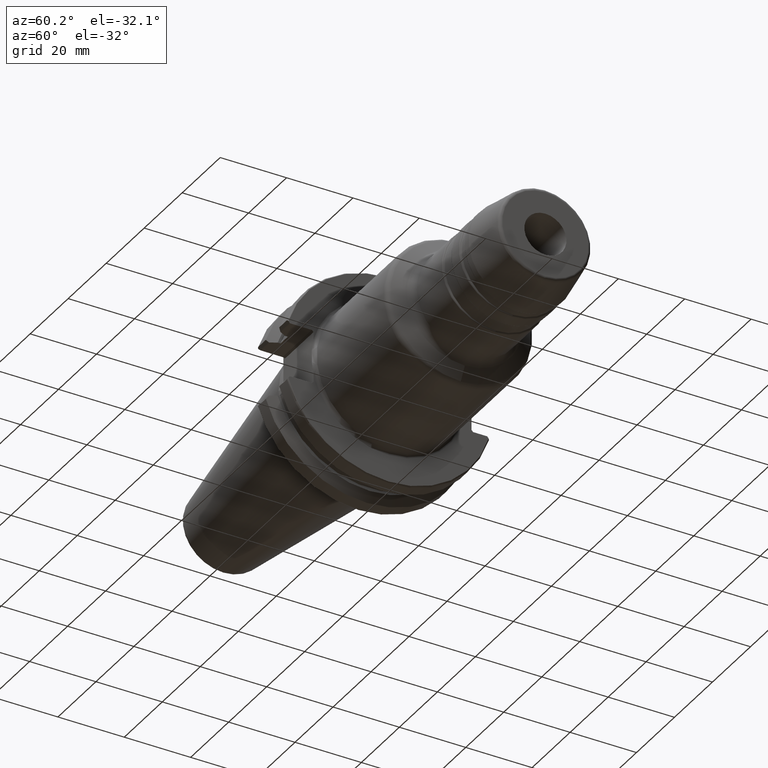
[diagram: clean part render]
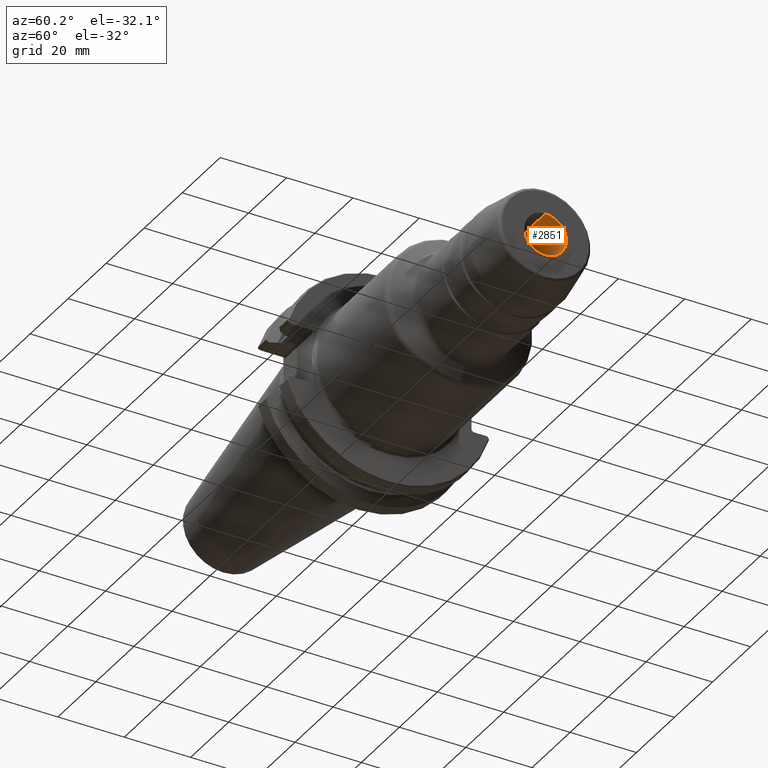
[diagram: same view with one face highlighted and labeled with its STEP entity id]
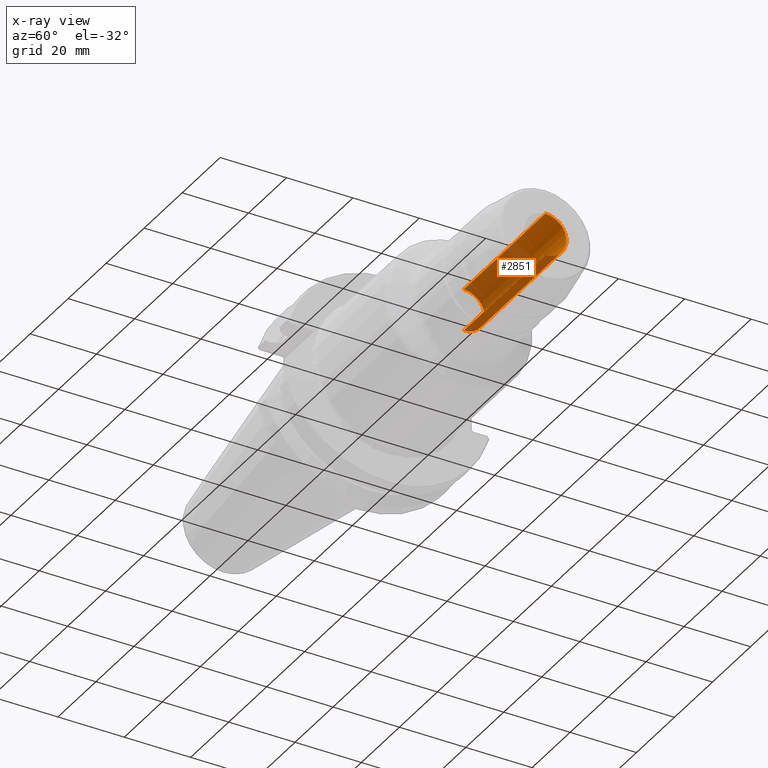
[diagram: x-ray of the same camera — body ghosted, the highlighted face saturated]
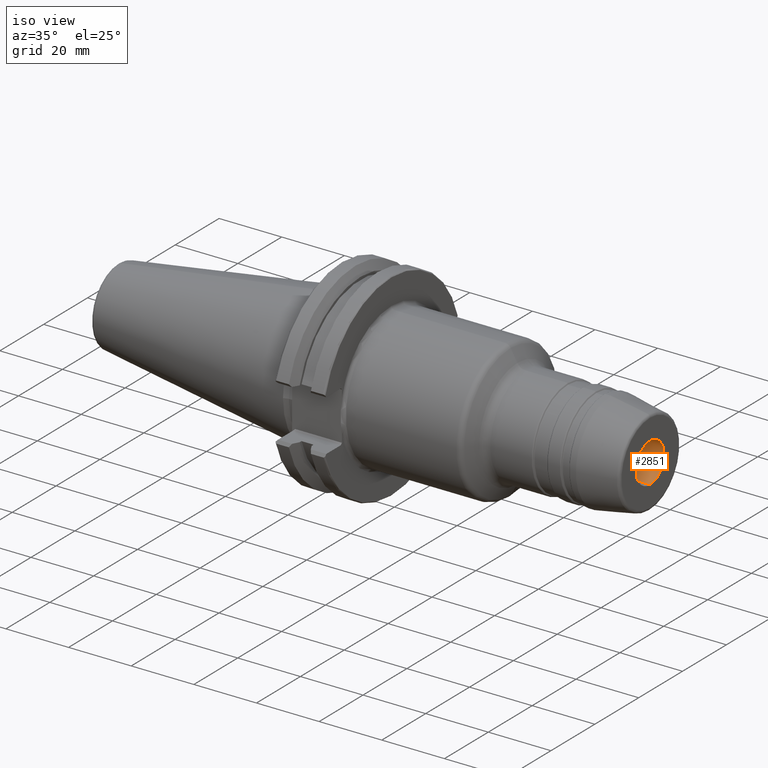
[diagram: same view with one face highlighted and labeled with its STEP entity id]
A machine part, auxiliary view. The second image highlights one B-rep face of the part: STEP entity #2851.
The next image is the same camera in x-ray: the body ghosted, the highlighted face saturated — about 45% of this face is hidden behind the body in this view.
A second angle (iso view) of the same face is appended — the face is thin or edge-on in the first view.
In plain terms, the highlighted cylindrical surface (edge-blend (fillet) strip) has radius 6.35 mm, axis along (1, 0, 0).
Its self-contained STEP definition (entity closure, byte-faithful):
#673=CARTESIAN_POINT('',(1.01625E2,0.E0,0.E0));
#674=DIRECTION('',(1.E0,0.E0,0.E0));
#675=DIRECTION('',(0.E0,0.E0,-1.E0));
#676=AXIS2_PLACEMENT_3D('',#673,#674,#675);
#683=CARTESIAN_POINT('',(5.8625E1,0.E0,0.E0));
#684=DIRECTION('',(1.E0,0.E0,0.E0));
#685=DIRECTION('',(0.E0,0.E0,-1.E0));
#686=AXIS2_PLACEMENT_3D('',#683,#684,#685);
#688=DIRECTION('',(1.E0,0.E0,0.E0));
#689=VECTOR('',#688,4.3E1);
#690=CARTESIAN_POINT('',(5.8625E1,0.E0,-6.35E0));
#691=LINE('',#690,#689);
#692=DIRECTION('',(1.E0,0.E0,0.E0));
#693=VECTOR('',#692,4.3E1);
#694=CARTESIAN_POINT('',(5.8625E1,0.E0,6.35E0));
#695=LINE('',#694,#693);
#1684=CARTESIAN_POINT('',(5.8625E1,0.E0,-6.35E0));
#1685=CARTESIAN_POINT('',(1.01625E2,0.E0,-6.35E0));
#1686=VERTEX_POINT('',#1684);
#1687=VERTEX_POINT('',#1685);
#1740=CARTESIAN_POINT('',(5.8625E1,0.E0,6.35E0));
#1741=CARTESIAN_POINT('',(1.01625E2,0.E0,6.35E0));
#1742=VERTEX_POINT('',#1740);
#1743=VERTEX_POINT('',#1741);
#2837=CARTESIAN_POINT('',(1.49475E1,0.E0,0.E0));
#2838=DIRECTION('',(1.E0,0.E0,0.E0));
#2839=DIRECTION('',(0.E0,0.E0,1.E0));
#2840=AXIS2_PLACEMENT_3D('',#2837,#2838,#2839);
#2841=CYLINDRICAL_SURFACE('',#2840,6.35E0);
#2843=ORIENTED_EDGE('',*,*,#2842,.F.);
#2845=ORIENTED_EDGE('',*,*,#2844,.T.);
#2847=ORIENTED_EDGE('',*,*,#2846,.T.);
#2848=ORIENTED_EDGE('',*,*,#2830,.F.);
#2849=EDGE_LOOP('',(#2843,#2845,#2847,#2848));
#2850=FACE_OUTER_BOUND('',#2849,.F.);
#2851=ADVANCED_FACE('',(#2850),#2841,.F.);
#677=CIRCLE('',#676,6.35E0);
#687=CIRCLE('',#686,6.35E0);
#2830=EDGE_CURVE('',#1687,#1743,#677,.T.);
#2842=EDGE_CURVE('',#1686,#1687,#691,.T.);
#2844=EDGE_CURVE('',#1686,#1742,#687,.T.);
#2846=EDGE_CURVE('',#1742,#1743,#695,.T.);